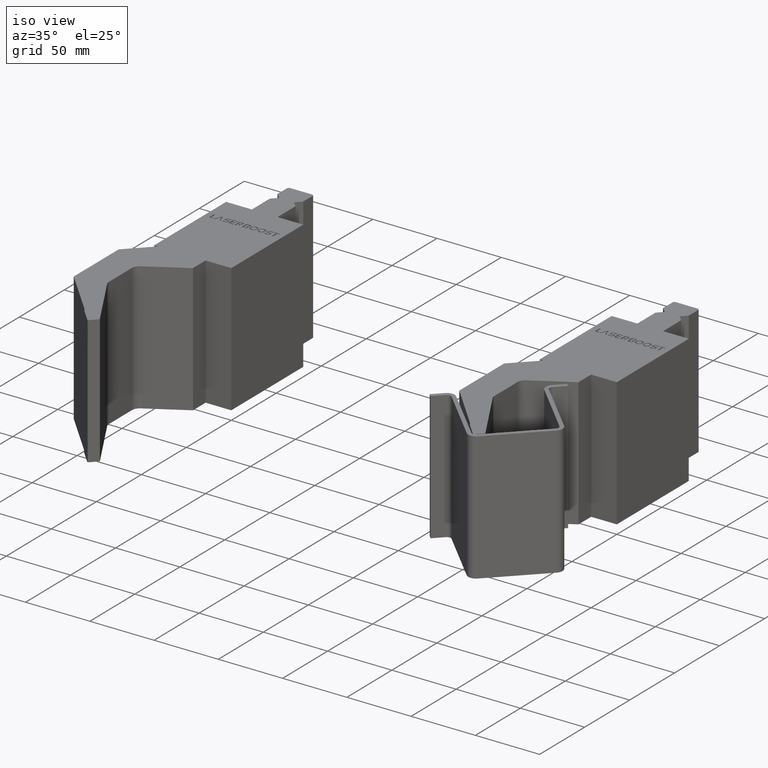
[diagram: clean part render]
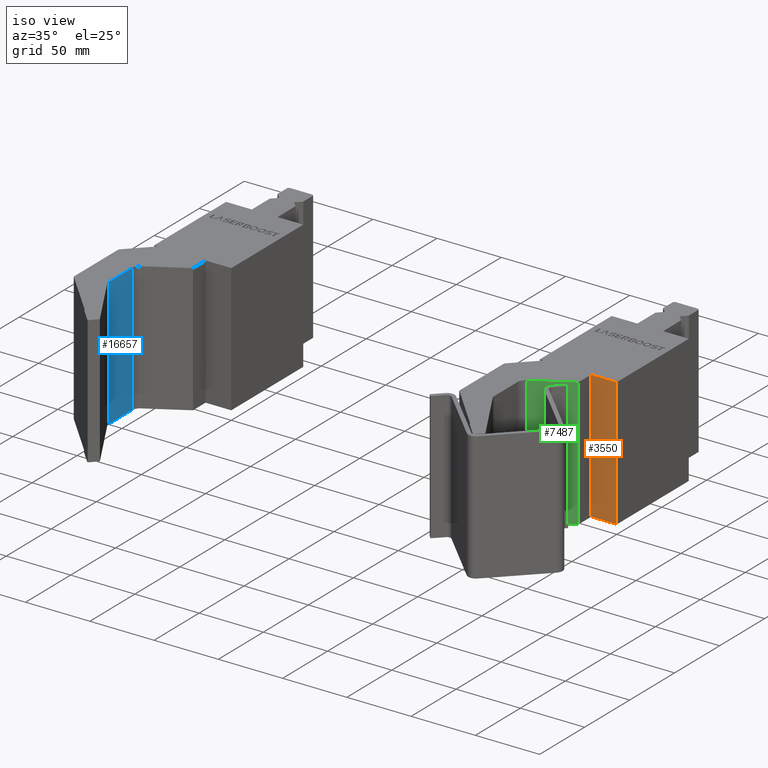
[diagram: same view with three faces highlighted in distinct colors, each labeled with its STEP entity id]
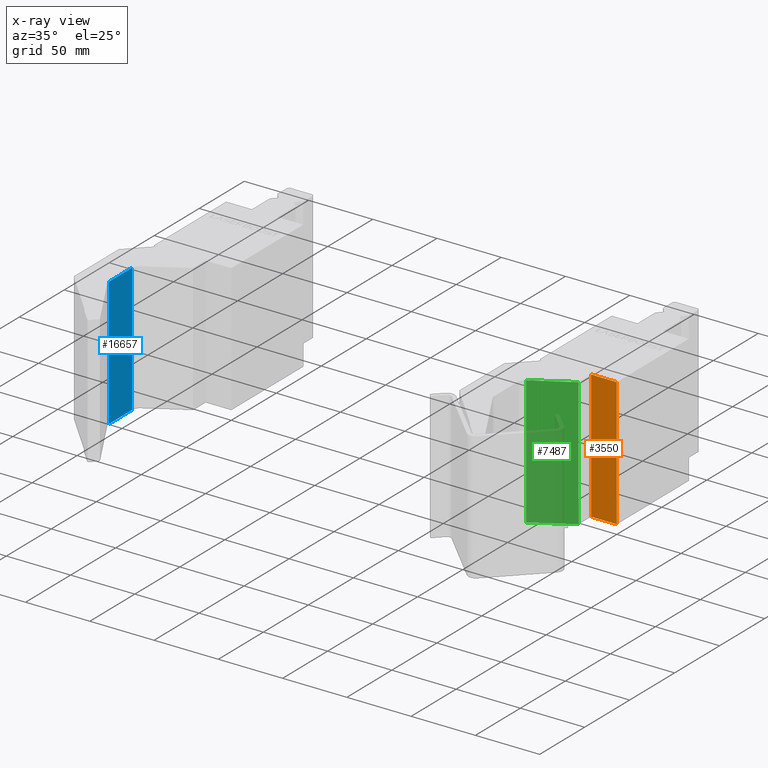
[diagram: x-ray of the same camera — body ghosted, the three highlighted faces saturated]
A machine part, iso view with three faces highlighted in distinct colors.
The next image is the same camera in x-ray (body ghosted, the three faces saturated) — at least one of them is partly hidden behind the body in this view.
Their STEP definitions:

[orange] entity #3550 — the highlighted face is a SurfaceOfExtrusion surface.
#302=CARTESIAN_POINT('',(-1.999998507530E1,0.E0,0.E0));
#307=CARTESIAN_POINT('',(-1.999998507530E1,0.E0,0.E0));
#308=CARTESIAN_POINT('',(-1.333332338353E1,0.E0,0.E0));
#309=CARTESIAN_POINT('',(-6.666661691765E0,0.E0,0.E0));
#310=CARTESIAN_POINT('',(0.E0,0.E0,0.E0));
#345=DIRECTION('',(0.E0,0.E0,1.E0));
#346=VECTOR('',#345,1.E2);
#347=CARTESIAN_POINT('',(0.E0,0.E0,0.E0));
#348=LINE('',#347,#346);
#352=DIRECTION('',(0.E0,0.E0,1.E0));
#353=VECTOR('',#352,1.E2);
#354=CARTESIAN_POINT('',(-1.999998507530E1,0.E0,0.E0));
#355=LINE('',#354,#353);
#579=CARTESIAN_POINT('',(-1.999998507530E1,0.E0,1.E2));
#580=CARTESIAN_POINT('',(-1.333332338353E1,0.E0,1.E2));
#581=CARTESIAN_POINT('',(-6.666661691765E0,0.E0,1.E2));
#582=CARTESIAN_POINT('',(0.E0,0.E0,1.E2));
#590=CARTESIAN_POINT('',(-1.999998507530E1,0.E0,1.E2));
#2999=VERTEX_POINT('',#302);
#3000=VERTEX_POINT('',#310);
#3031=VERTEX_POINT('',#590);
#3032=VERTEX_POINT('',#582);
#3528=CARTESIAN_POINT('',(-2.039998477680E1,0.E0,0.E0));
#3529=CARTESIAN_POINT('',(-2.026665154297E1,0.E0,0.E0));
#3530=CARTESIAN_POINT('',(-1.909165241979E1,0.E0,0.E0));
#3531=CARTESIAN_POINT('',(-1.229165749419E1,0.E0,0.E0));
#3532=CARTESIAN_POINT('',(-5.491662568591E0,0.E0,0.E0));
#3533=CARTESIAN_POINT('',(2.666664676706E-1,0.E0,0.E0));
#3534=CARTESIAN_POINT('',(3.999997015059E-1,0.E0,0.E0));
#3539=DIRECTION('',(0.E0,0.E0,1.E0));
#3540=VECTOR('',#3539,1.E0);
#3541=SURFACE_OF_LINEAR_EXTRUSION('',#3535,#3540);
#3542=ORIENTED_EDGE('',*,*,#3401,.F.);
#3544=ORIENTED_EDGE('',*,*,#3543,.T.);
#3546=ORIENTED_EDGE('',*,*,#3545,.T.);
#3547=ORIENTED_EDGE('',*,*,#3508,.F.);
#3548=EDGE_LOOP('',(#3542,#3544,#3546,#3547));
#3549=FACE_OUTER_BOUND('',#3548,.F.);
#3550=ADVANCED_FACE('',(#3549),#3541,.T.);
#311=B_SPLINE_CURVE_WITH_KNOTS('',3,(#307,#308,#309,#310),.UNSPECIFIED.,.F.,.F.,
(4,4),(0.E0,1.E0),.UNSPECIFIED.);
#583=B_SPLINE_CURVE_WITH_KNOTS('',3,(#579,#580,#581,#582),.UNSPECIFIED.,.F.,.F.,
(4,4),(0.E0,1.E0),.UNSPECIFIED.);
#3401=EDGE_CURVE('',#2999,#3000,#311,.T.);
#3508=EDGE_CURVE('',#3000,#3032,#348,.T.);
#3535=B_SPLINE_CURVE_WITH_KNOTS('',3,(#3528,#3529,#3530,#3531,#3532,#3533,
#3534),.UNSPECIFIED.,.F.,.F.,(4,1,1,1,4),(0.E0,1.923076923077E-2,
1.694711538462E-1,9.807692307692E-1,1.E0),.UNSPECIFIED.);
#3543=EDGE_CURVE('',#2999,#3031,#355,.T.);
#3545=EDGE_CURVE('',#3031,#3032,#583,.T.);

[blue] entity #16657 — the highlighted planar face has unit normal (1, 0, 0).
#15859=CARTESIAN_POINT('',(-4.788734739623E0,-2.067294964537E1,0.E0));
#15864=DIRECTION('',(0.E0,1.E0,0.E0));
#15865=VECTOR('',#15864,2.585007547080E1);
#15866=CARTESIAN_POINT('',(-4.788734739623E0,-2.067294964537E1,0.E0));
#15867=LINE('',#15866,#15865);
#16017=CARTESIAN_POINT('',(-4.788734739623E0,-2.067294964537E1,1.E2));
#16029=DIRECTION('',(0.E0,1.E0,0.E0));
#16030=VECTOR('',#16029,2.585007547080E1);
#16031=CARTESIAN_POINT('',(-4.788734739623E0,-2.067294964537E1,1.E2));
#16032=LINE('',#16031,#16030);
#16036=DIRECTION('',(0.E0,0.E0,1.E0));
#16037=VECTOR('',#16036,1.E2);
#16038=CARTESIAN_POINT('',(-4.788734739623E0,-2.067294964537E1,0.E0));
#16039=LINE('',#16038,#16037);
#16051=DIRECTION('',(0.E0,0.E0,1.E0));
#16052=VECTOR('',#16051,1.E2);
#16053=CARTESIAN_POINT('',(-4.788734739623E0,5.177125825434E0,0.E0));
#16054=LINE('',#16053,#16052);
#16368=VERTEX_POINT('',#15859);
#16369=CARTESIAN_POINT('',(-4.788734739623E0,5.177125825434E0,0.E0));
#16370=VERTEX_POINT('',#16369);
#16405=VERTEX_POINT('',#16017);
#16406=CARTESIAN_POINT('',(-4.788734739623E0,5.177125825434E0,1.E2));
#16407=VERTEX_POINT('',#16406);
#16645=CARTESIAN_POINT('',(-4.788734739623E0,-2.067294964537E1,0.E0));
#16646=DIRECTION('',(1.E0,0.E0,0.E0));
#16647=DIRECTION('',(0.E0,1.E0,0.E0));
#16648=AXIS2_PLACEMENT_3D('',#16645,#16646,#16647);
#16649=PLANE('',#16648);
#16650=ORIENTED_EDGE('',*,*,#16579,.T.);
#16652=ORIENTED_EDGE('',*,*,#16651,.F.);
#16653=ORIENTED_EDGE('',*,*,#16465,.F.);
#16654=ORIENTED_EDGE('',*,*,#16626,.T.);
#16655=EDGE_LOOP('',(#16650,#16652,#16653,#16654));
#16656=FACE_OUTER_BOUND('',#16655,.F.);
#16657=ADVANCED_FACE('',(#16656),#16649,.T.);
#16465=EDGE_CURVE('',#16368,#16370,#15867,.T.);
#16579=EDGE_CURVE('',#16405,#16407,#16032,.T.);
#16626=EDGE_CURVE('',#16368,#16405,#16039,.T.);
#16651=EDGE_CURVE('',#16370,#16407,#16054,.T.);

[green] entity #7487 — the highlighted planar face has unit normal (0.5, -0.866, 0).
#6646=CARTESIAN_POINT('',(-1.788734739624E0,1.037327824823E1,0.E0));
#6651=DIRECTION('',(8.660254037844E-1,5.E-1,0.E0));
#6652=VECTOR('',#6651,3.348631561300E1);
#6653=CARTESIAN_POINT('',(-1.788734739624E0,1.037327824823E1,0.E0));
#6654=LINE('',#6653,#6652);
#6818=CARTESIAN_POINT('',(-1.788734739624E0,1.037327824823E1,1.E2));
#6830=DIRECTION('',(8.660254037844E-1,5.E-1,0.E0));
#6831=VECTOR('',#6830,3.348631561300E1);
#6832=CARTESIAN_POINT('',(-1.788734739624E0,1.037327824823E1,1.E2));
#6833=LINE('',#6832,#6831);
#6837=DIRECTION('',(0.E0,0.E0,1.E0));
#6838=VECTOR('',#6837,1.E2);
#6839=CARTESIAN_POINT('',(-1.788734739624E0,1.037327824823E1,0.E0));
#6840=LINE('',#6839,#6838);
#6851=DIRECTION('',(0.E0,0.E0,1.E0));
#6852=VECTOR('',#6851,1.E2);
#6853=CARTESIAN_POINT('',(2.721126526038E1,2.711643605473E1,0.E0));
#6854=LINE('',#6853,#6852);
#7143=VERTEX_POINT('',#6646);
#7144=CARTESIAN_POINT('',(2.721126526038E1,2.711643605473E1,0.E0));
#7145=VERTEX_POINT('',#7144);
#7180=VERTEX_POINT('',#6818);
#7181=CARTESIAN_POINT('',(2.721126526038E1,2.711643605473E1,1.E2));
#7182=VERTEX_POINT('',#7181);
#7475=CARTESIAN_POINT('',(-1.788734739624E0,1.037327824823E1,0.E0));
#7476=DIRECTION('',(5.E-1,-8.660254037844E-1,0.E0));
#7477=DIRECTION('',(8.660254037844E-1,5.E-1,0.E0));
#7478=AXIS2_PLACEMENT_3D('',#7475,#7476,#7477);
#7479=PLANE('',#7478);
#7480=ORIENTED_EDGE('',*,*,#7347,.T.);
#7482=ORIENTED_EDGE('',*,*,#7481,.F.);
#7483=ORIENTED_EDGE('',*,*,#7241,.F.);
#7484=ORIENTED_EDGE('',*,*,#7456,.T.);
#7485=EDGE_LOOP('',(#7480,#7482,#7483,#7484));
#7486=FACE_OUTER_BOUND('',#7485,.F.);
#7487=ADVANCED_FACE('',(#7486),#7479,.T.);
#7241=EDGE_CURVE('',#7143,#7145,#6654,.T.);
#7347=EDGE_CURVE('',#7180,#7182,#6833,.T.);
#7456=EDGE_CURVE('',#7143,#7180,#6840,.T.);
#7481=EDGE_CURVE('',#7145,#7182,#6854,.T.);